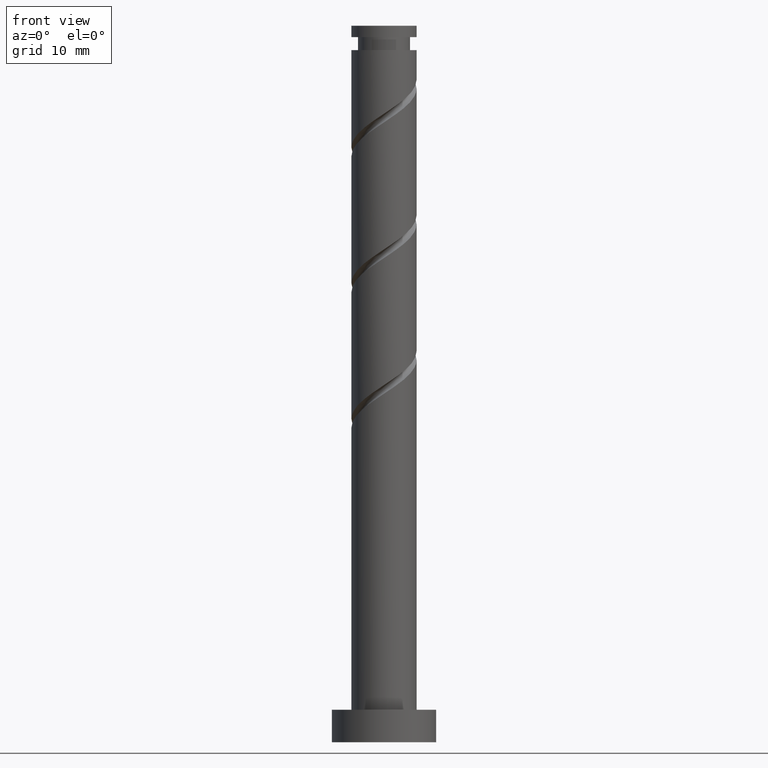
[diagram: clean part render]
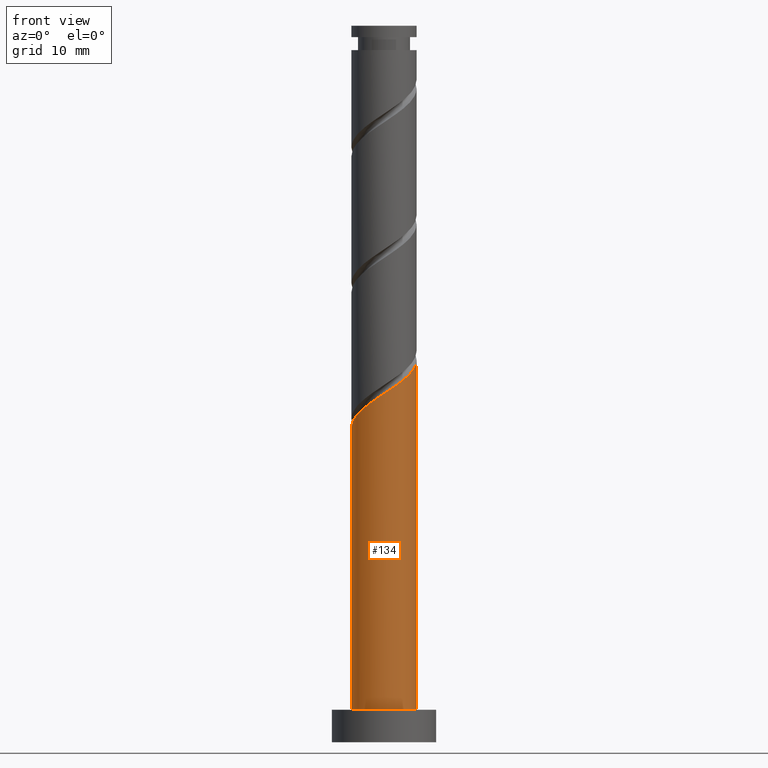
[diagram: same view with one face highlighted and labeled with its STEP entity id]
A machine part, front view. The second image highlights one B-rep face of the part: STEP entity #134.
In plain terms, the highlighted cylindrical surface (edge-blend (fillet) strip) has radius 5 mm, axis along (-0, -0, -1).
Its self-contained STEP definition (entity closure, byte-faithful):
#52 = CARTESIAN_POINT ( 'NONE',  ( -4.742409471643930452, -1.771071194696849149, 49.48648057858955696 ) ) ;
#76 = CARTESIAN_POINT ( 'NONE',  ( -5.000000000000006217, -4.557903246094551188E-15, 48.30084480378595657 ) ) ;
#92 = EDGE_LOOP ( 'NONE', ( #311, #1520, #656, #230 ) ) ;
#97 = CARTESIAN_POINT ( 'NONE',  ( -2.795680327841834956, -4.220345042522132495, 51.56981391192289266 ) ) ;
#102 = CARTESIAN_POINT ( 'NONE',  ( 4.877699385847473756, -1.354691653006749208, 57.81981391192288555 ) ) ;
#134 = ADVANCED_FACE ( 'NONE', ( #365 ), #265, .T. ) ;
#207 = CARTESIAN_POINT ( 'NONE',  ( -2.075185990424292193, -4.549022214184802237, 52.09064724525622125 ) ) ;
#222 = CARTESIAN_POINT ( 'NONE',  ( 4.549022214184802237, -2.075185990424292193, 57.29898057858954274 ) ) ;
#230 = ORIENTED_EDGE ( 'NONE', *, *, #1004, .T. ) ;
#265 = CYLINDRICAL_SURFACE ( 'NONE', #1310, 5.000000000000000000 ) ;
#299 = CARTESIAN_POINT ( 'NONE',  ( -5.000000000000006217, -4.557903246094551188E-15, 48.30084480378595657 ) ) ;
#311 = ORIENTED_EDGE ( 'NONE', *, *, #877, .F. ) ;
#330 = CARTESIAN_POINT ( 'NONE',  ( -0.5678939867451787693, -4.967644957101777337, 53.13231391192286424 ) ) ;
#357 = CARTESIAN_POINT ( 'NONE',  ( -5.000000000000000000, 0.000000000000000000, 110.0000000000000000 ) ) ;
#365 = FACE_OUTER_BOUND ( 'NONE', #92, .T. ) ;
#366 = DIRECTION ( 'NONE',  ( -0.000000000000000000, -0.000000000000000000, -1.000000000000000000 ) ) ;
#411 = VERTEX_POINT ( 'NONE', #1405 ) ;
#454 = CARTESIAN_POINT ( 'NONE',  ( 5.000000000000005329, 3.958179134766322159E-15, 58.71751147045262798 ) ) ;
#483 = LINE ( 'NONE', #357, #629 ) ;
#540 = CARTESIAN_POINT ( 'NONE',  ( -4.352708902590738838, -2.460472558129309206, 50.00731391192288555 ) ) ;
#550 = CIRCLE ( 'NONE', #1253, 5.000000000000000000 ) ;
#554 = DIRECTION ( 'NONE',  ( 1.000000000000000000, 0.000000000000000000, 0.000000000000000000 ) ) ;
#571 = CARTESIAN_POINT ( 'NONE',  ( 4.220345042522133383, -2.795680327841835844, 56.77814724525622836 ) ) ;
#594 = VERTEX_POINT ( 'NONE', #76 ) ;
#610 = EDGE_CURVE ( 'NONE', #594, #784, #800, .T. ) ;
#629 = VECTOR ( 'NONE', #1229, 1000.000000000000000 ) ;
#656 = ORIENTED_EDGE ( 'NONE', *, *, #1242, .T. ) ;
#658 = CARTESIAN_POINT ( 'NONE',  ( -4.900000000000007461, -0.9949874371066202983, 48.96564724525623546 ) ) ;
#722 = CARTESIAN_POINT ( 'NONE',  ( 3.685109482041951878, -3.379344330689691756, 56.25731391192286424 ) ) ;
#779 = CARTESIAN_POINT ( 'NONE',  ( 5.000000000000000000, 6.123233995736766282E-16, 5.000000000000000000 ) ) ;
#781 = CARTESIAN_POINT ( 'NONE',  ( -3.379344330689691756, -3.685109482041951878, 51.04898057858954274 ) ) ;
#784 = VERTEX_POINT ( 'NONE', #813 ) ;
#788 = DIRECTION ( 'NONE',  ( 0.000000000000000000, 0.000000000000000000, 1.000000000000000000 ) ) ;
#800 =( BOUNDED_CURVE ( )  B_SPLINE_CURVE ( 2, ( #299, #1377, #658, #52, #540, #1031, #781, #97, #207, #1183, #330, #1416, #820, #1317, #1323, #1536, #722, #571, #222, #102, #1084, #1178, #454 ),
 .UNSPECIFIED., .F., .T. ) 
 B_SPLINE_CURVE_WITH_KNOTS ( ( 3, 2, 2, 2, 2, 2, 2, 2, 2, 2, 2, 3 ),
 ( 0.05453220231385520061, 0.06250000000000000000, 0.07499999999999995559, 0.08750000000000002220, 0.09999999999999997780, 0.1125000000000000444, 0.1250000000000000000, 0.1374999999999999556, 0.1500000000000000222, 0.1624999999999999778, 0.1750000000000000444, 0.1795322023138552492 ),
 .UNSPECIFIED. ) 
 CURVE ( )  GEOMETRIC_REPRESENTATION_ITEM ( )  RATIONAL_B_SPLINE_CURVE ( ( 0.9039174447099378451, 0.9019565955404670321, 0.9090909090909153889, 0.8978984914501313419, 0.9090909090909153889, 0.8978984914501313419, 0.9090909090909153889, 0.8978984914501313419, 0.9090909090909153889, 0.8978984914501313419, 0.9090909090909153889, 0.8978984914501313419, 0.9090909090909153889, 0.8978984914501313419, 0.9090909090909153889, 0.8978984914501313419, 0.9090909090909153889, 0.8978984914501313419, 0.9090909090909153889, 0.8978984914501313419, 0.9090909090909153889, 0.9050328050005796987, 0.9039174447099376231 ) ) 
 REPRESENTATION_ITEM ( '' )  );
#813 = CARTESIAN_POINT ( 'NONE',  ( 5.000000000000005329, 3.958179134766321370E-15, 58.71751147045262798 ) ) ;
#820 = CARTESIAN_POINT ( 'NONE',  ( 0.9949874371066198542, -4.900000000000007461, 54.17398057858954985 ) ) ;
#833 = DIRECTION ( 'NONE',  ( -1.000000000000000000, 0.000000000000000000, 0.000000000000000000 ) ) ;
#877 = EDGE_CURVE ( 'NONE', #784, #903, #979, .T. ) ;
#903 = VERTEX_POINT ( 'NONE', #779 ) ;
#907 = CARTESIAN_POINT ( 'NONE',  ( 0.000000000000000000, 0.000000000000000000, 5.000000000000000000 ) ) ;
#979 = LINE ( 'NONE', #1450, #1309 ) ;
#1001 = DIRECTION ( 'NONE',  ( -0.000000000000000000, -0.000000000000000000, -1.000000000000000000 ) ) ;
#1004 = EDGE_CURVE ( 'NONE', #411, #903, #550, .T. ) ;
#1031 = CARTESIAN_POINT ( 'NONE',  ( -3.963008333537548999, -3.149873921561770818, 50.52814724525622125 ) ) ;
#1084 = CARTESIAN_POINT ( 'NONE',  ( 4.967644957101777337, -0.5678939867451789913, 58.34064724525622125 ) ) ;
#1120 = CARTESIAN_POINT ( 'NONE',  ( 0.000000000000000000, 0.000000000000000000, 110.0000000000000000 ) ) ;
#1178 = CARTESIAN_POINT ( 'NONE',  ( 5.000000000000006217, -0.2848686872321634644, 58.52800038124534154 ) ) ;
#1183 = CARTESIAN_POINT ( 'NONE',  ( -1.354691653006748764, -4.877699385847473756, 52.61148057858955696 ) ) ;
#1229 = DIRECTION ( 'NONE',  ( -0.000000000000000000, -0.000000000000000000, -1.000000000000000000 ) ) ;
#1242 = EDGE_CURVE ( 'NONE', #594, #411, #483, .T. ) ;
#1253 = AXIS2_PLACEMENT_3D ( 'NONE', #907, #788, #554 ) ;
#1309 = VECTOR ( 'NONE', #366, 1000.000000000000000 ) ;
#1310 = AXIS2_PLACEMENT_3D ( 'NONE', #1120, #1001, #833 ) ;
#1317 = CARTESIAN_POINT ( 'NONE',  ( 1.771071194696849149, -4.742409471643930452, 54.69481391192287845 ) ) ;
#1323 = CARTESIAN_POINT ( 'NONE',  ( 2.460472558129308762, -4.352708902590738838, 55.21564724525622125 ) ) ;
#1377 = CARTESIAN_POINT ( 'NONE',  ( -5.000000000000007105, -0.5025189076296054935, 48.63514937919379832 ) ) ;
#1405 = CARTESIAN_POINT ( 'NONE',  ( -5.000000000000000000, 0.000000000000000000, 5.000000000000000000 ) ) ;
#1416 = CARTESIAN_POINT ( 'NONE',  ( 0.2189036795163911142, -5.057590528356081805, 53.65314724525622836 ) ) ;
#1450 = CARTESIAN_POINT ( 'NONE',  ( 5.000000000000000000, 6.123233995736766282E-16, 110.0000000000000000 ) ) ;
#1520 = ORIENTED_EDGE ( 'NONE', *, *, #610, .F. ) ;
#1536 = CARTESIAN_POINT ( 'NONE',  ( 3.149873921561770374, -3.963008333537548999, 55.73648057858954985 ) ) ;